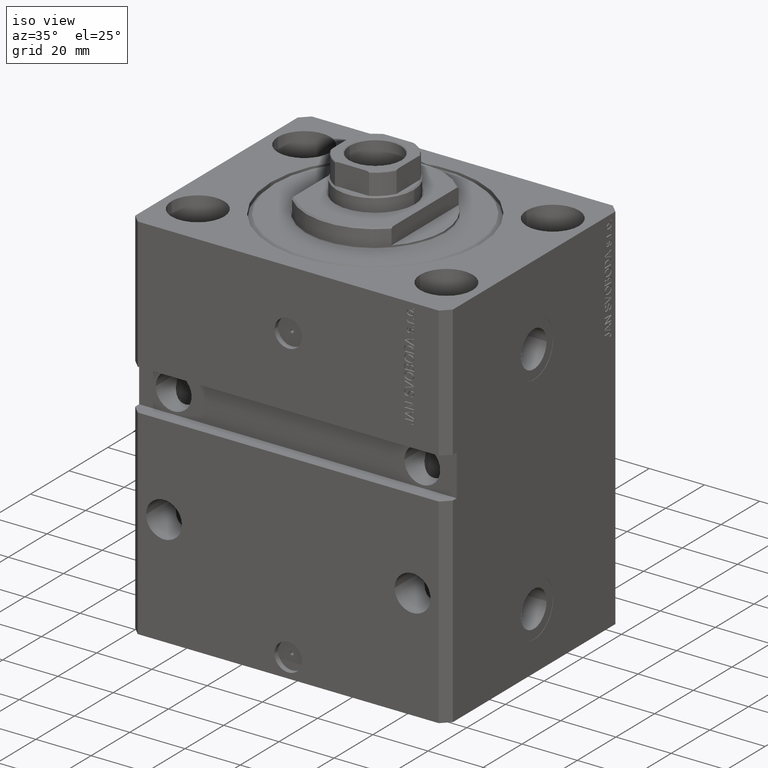
[diagram: clean part render]
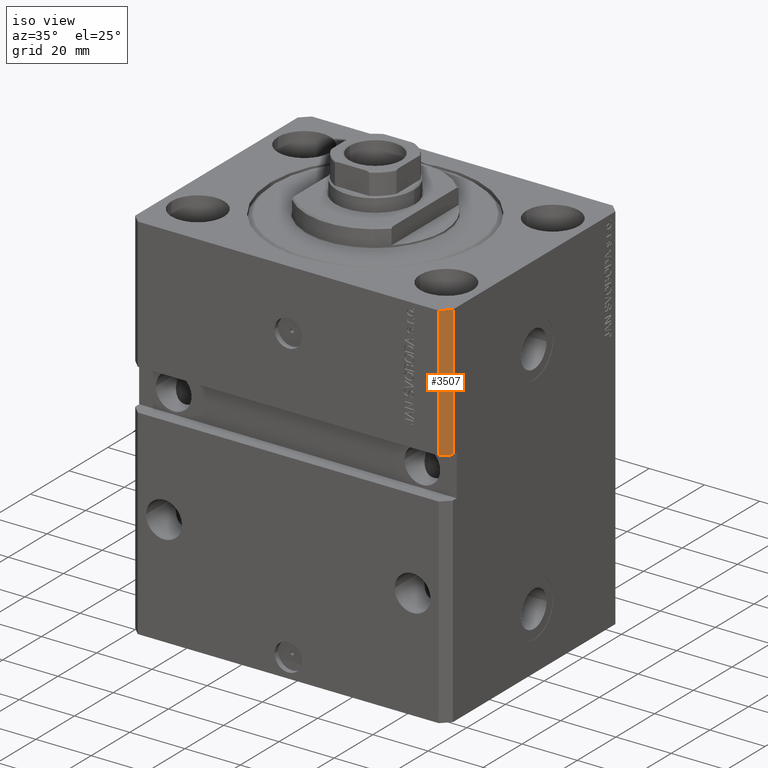
[diagram: same view with one face highlighted and labeled with its STEP entity id]
A machine part, iso view. The second image highlights one B-rep face of the part: STEP entity #3507.
In plain terms, the highlighted planar face has unit normal (0.7071, -0.7071, 0).
Its self-contained STEP definition (entity closure, byte-faithful):
#1808 = VERTEX_POINT ( 'NONE', #46905 ) ;
#3507 = ADVANCED_FACE ( 'NONE', ( #17641 ), #36006, .T. ) ;
#4327 = ORIENTED_EDGE ( 'NONE', *, *, #44029, .F. ) ;
#5936 = CARTESIAN_POINT ( 'NONE',  ( 54.50000000000000711, -44.99999999999998579, 0.000000000000000000 ) ) ;
#9096 = LINE ( 'NONE', #35746, #48381 ) ;
#10105 = DIRECTION ( 'NONE',  ( 0.7071067811865466846, -0.7071067811865483499, 0.000000000000000000 ) ) ;
#10934 = CARTESIAN_POINT ( 'NONE',  ( 54.50000000000000711, -44.99999999999998579, -135.0000000000000000 ) ) ;
#12324 = CARTESIAN_POINT ( 'NONE',  ( 54.50000000000000711, -44.99999999999998579, 0.000000000000000000 ) ) ;
#14228 = EDGE_CURVE ( 'NONE', #22263, #25808, #31426, .T. ) ;
#15650 = DIRECTION ( 'NONE',  ( 0.000000000000000000, 0.000000000000000000, 1.000000000000000000 ) ) ;
#17641 = FACE_OUTER_BOUND ( 'NONE', #29770, .T. ) ;
#18689 = EDGE_CURVE ( 'NONE', #22803, #1808, #46790, .T. ) ;
#19812 = VECTOR ( 'NONE', #27678, 1000.000000000000000 ) ;
#20139 = DIRECTION ( 'NONE',  ( -0.7071067811865483499, -0.7071067811865466846, -1.279966678274818665E-16 ) ) ;
#21630 = CARTESIAN_POINT ( 'NONE',  ( 57.50000000000000711, -41.99999999999998579, -47.49999999999998579 ) ) ;
#22263 = VERTEX_POINT ( 'NONE', #5936 ) ;
#22415 = VECTOR ( 'NONE', #20139, 1000.000000000000000 ) ;
#22803 = VERTEX_POINT ( 'NONE', #21630 ) ;
#25456 = DIRECTION ( 'NONE',  ( 0.7071067811865483499, 0.7071067811865466846, 0.000000000000000000 ) ) ;
#25808 = VERTEX_POINT ( 'NONE', #38671 ) ;
#27678 = DIRECTION ( 'NONE',  ( 0.7071067811865483499, 0.7071067811865466846, 0.000000000000000000 ) ) ;
#29225 = CARTESIAN_POINT ( 'NONE',  ( 54.50000000000000711, -44.99999999999998579, -135.0000000000000000 ) ) ;
#29770 = EDGE_LOOP ( 'NONE', ( #33894, #30826, #31191, #4327 ) ) ;
#30826 = ORIENTED_EDGE ( 'NONE', *, *, #48193, .T. ) ;
#31191 = ORIENTED_EDGE ( 'NONE', *, *, #14228, .F. ) ;
#31426 = LINE ( 'NONE', #12324, #19812 ) ;
#33894 = ORIENTED_EDGE ( 'NONE', *, *, #18689, .F. ) ;
#35746 = CARTESIAN_POINT ( 'NONE',  ( 57.50000000000000711, -41.99999999999998579, -135.0000000000000000 ) ) ;
#36006 = PLANE ( 'NONE',  #42859 ) ;
#37580 = DIRECTION ( 'NONE',  ( 0.000000000000000000, 0.000000000000000000, 1.000000000000000000 ) ) ;
#38671 = CARTESIAN_POINT ( 'NONE',  ( 57.50000000000000711, -41.99999999999998579, 0.000000000000000000 ) ) ;
#41347 = LINE ( 'NONE', #10934, #49138 ) ;
#42859 = AXIS2_PLACEMENT_3D ( 'NONE', #29225, #10105, #25456 ) ;
#43024 = CARTESIAN_POINT ( 'NONE',  ( 54.50000000000000000, -44.99999999999999289, -47.49999999999998579 ) ) ;
#44029 = EDGE_CURVE ( 'NONE', #1808, #22263, #41347, .T. ) ;
#46790 = LINE ( 'NONE', #43024, #22415 ) ;
#46905 = CARTESIAN_POINT ( 'NONE',  ( 54.50000000000000711, -44.99999999999998579, -47.49999999999998579 ) ) ;
#48193 = EDGE_CURVE ( 'NONE', #22803, #25808, #9096, .T. ) ;
#48381 = VECTOR ( 'NONE', #15650, 1000.000000000000000 ) ;
#49138 = VECTOR ( 'NONE', #37580, 1000.000000000000000 ) ;